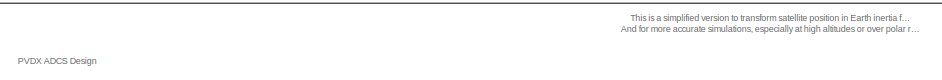
[diagram: root canvas - part 1/5, top center region]
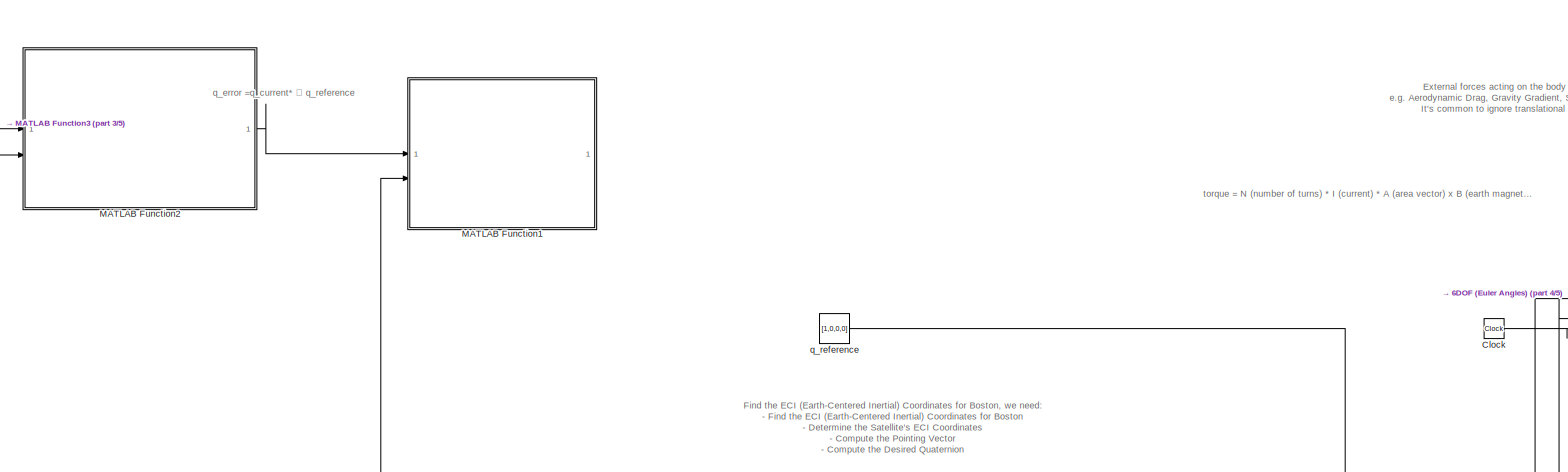
[diagram: root canvas - part 2/5, top left region]
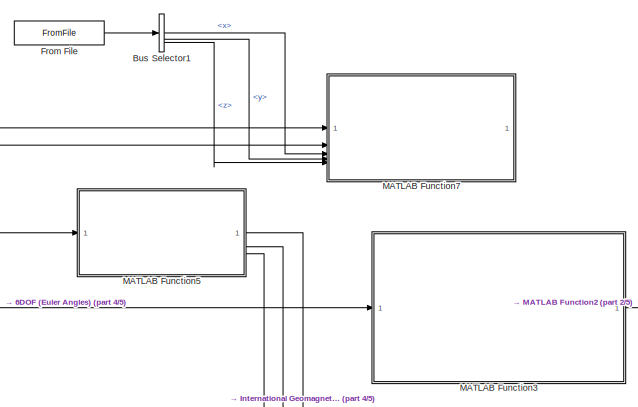
[diagram: root canvas - part 3/5, top right region]
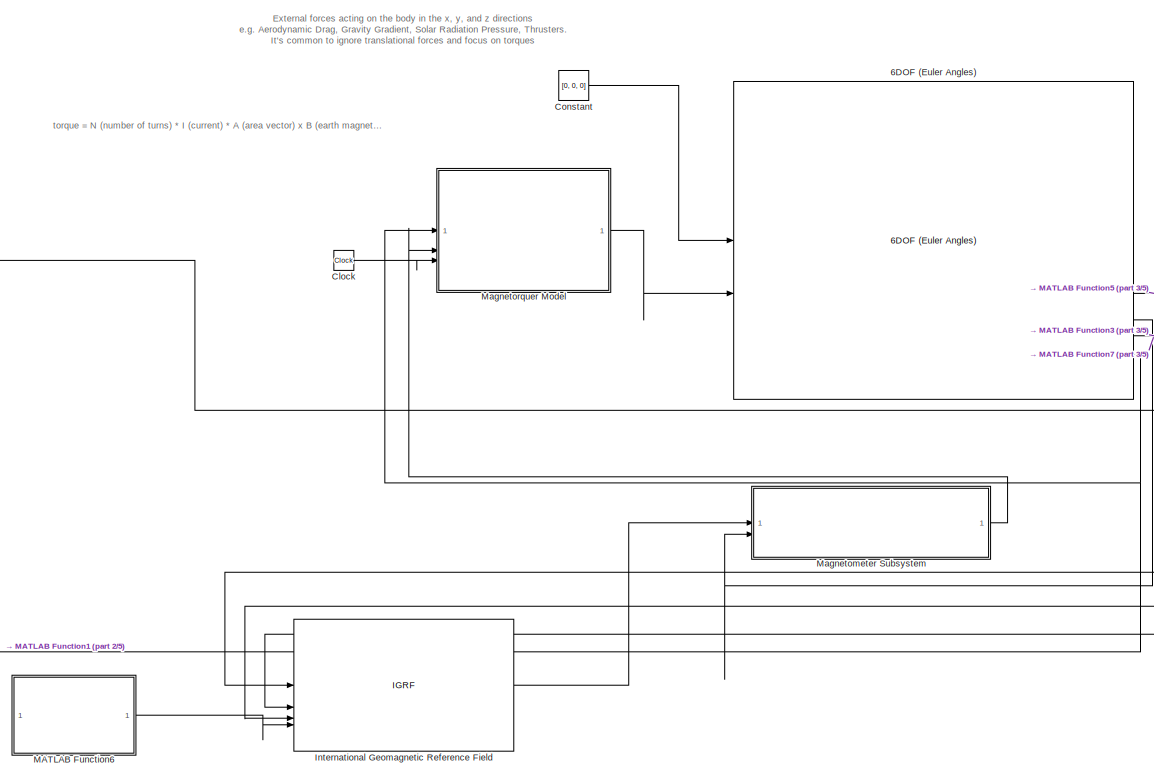
[diagram: root canvas - part 4/5, central region]
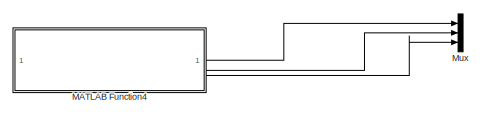
[diagram: root canvas - part 5/5, bottom center region]
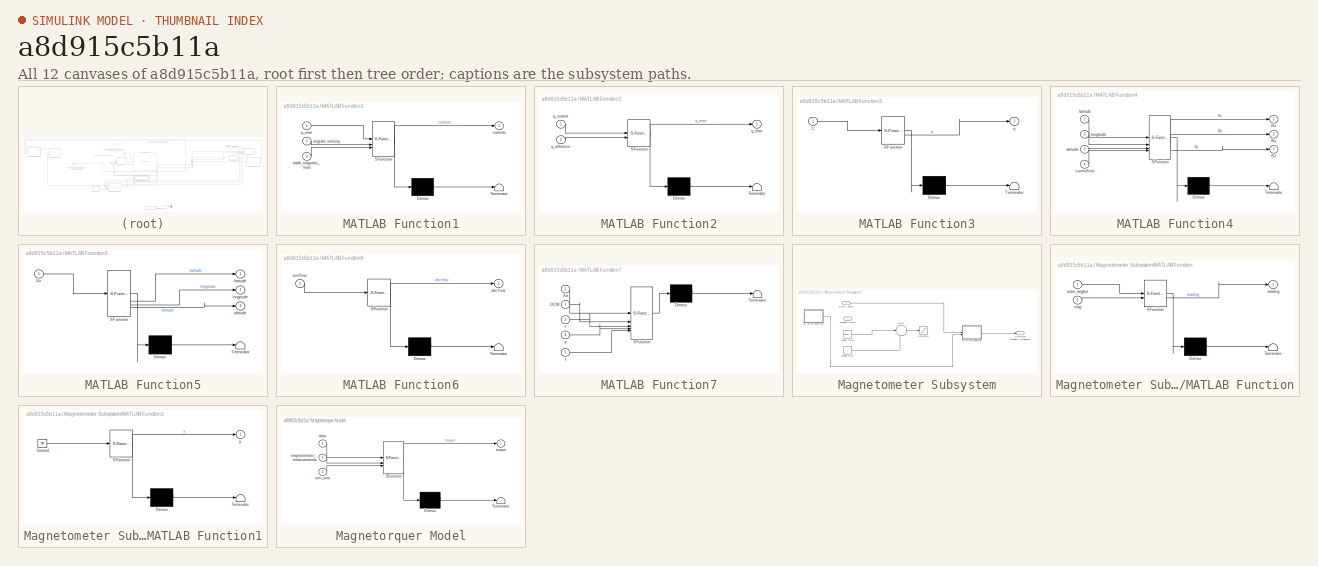
[diagram: thumbnail index - all 12 canvases of the model, root first then tree order]
MODEL slx_a8d915c5b11a
KIND model
CONFIG AbsTol = auto
CONFIG EnableMultiTasking = off
CONFIG FixedStep = auto
CONFIG InitFcn = % Define the parameters\ncore_radius = 0.005;\ncore_length = 0.045;\nlayers = 6;\ntemp = 20;\nside_length = 0.045;\nair_length = 0.025;\nair_layers = 5;\n \ncoreMagX = CoreMagnetorquer(core_radius, core_length, layers, temp);\ncoreMagY = CoreMagnetorquer(core_radius, core_length, layers, temp);  \nairMagZ = AirMagnetorquer(side_length, air_length, air_layers, temp);\n\n
CONFIG MaxStep = auto
CONFIG MinStep = auto
CONFIG RelTol = 1e-3
CONFIG SampleTimeConstraint = Unconstrained
CONFIG SolverName = ode45
CONFIG StartTime = 0.0
CONFIG StopTime = 100000
BLOCK [Reference] 6DOF (Euler Angles)  REF=shared6dof/6DOF (Euler Angles)
  LibrarySourceBlock = aerolib6dof2/6DOF (Euler Angles)
  SourceBlock = shared6dof/6DOF (Euler Angles)
  SourceType = 6DOF EoM (Body Axis)
BLOCK [BusSelector] Bus Selector1
  Commented = on
  OutputSignals = x,y,z
BLOCK [Clock] Clock
BLOCK [Constant] Constant
  Commented = on
  Value = [0, 0, 0]
BLOCK [FromFile] From File
  Commented = on
  FileName = <userpath>/Documents/Brown/BSE/ADCS/ADCS_Visual_MATLAB/earth_sphere_v73.mat
  OutDataTypeStr = Bus: SphereBus
  SampleTime = 0
BLOCK [IGRF] International Geomagnetic Reference Field
  AttributesFormatString = %<generation>
  Commented = on
  day = 1
  month = January
  year = 2020
BLOCK [SubSystem] MATLAB Function1
  Commented = on
  ErrorFcn = Stateflow.Translate.translate
  PermitHierarchicalResolution = ExplicitOnly
  SFBlockType = MATLAB Function
  TreatAsAtomicUnit = on
BLOCK [Demux] MATLAB Function1/ Demux 
  Outputs = 1
BLOCK [S-Function] MATLAB Function1/ SFunction 
  EnableBusSupport = on
  FunctionName = sf_sfun
  PortCounts = [3 2]
  SFcnIsStateOwnerBlock = off
  SFunctionDeploymentMode = off
  Tag = Stateflow S-Function 1
BLOCK [Terminator] MATLAB Function1/ Terminator 
BLOCK [Inport] MATLAB Function1/angular_velocity
  Port = 2
BLOCK [Outport] MATLAB Function1/currents
BLOCK [Inport] MATLAB Function1/earth_magnetic_field
  Port = 3
BLOCK [Inport] MATLAB Function1/q_error
BLOCK [SubSystem] MATLAB Function2
  Commented = on
  ErrorFcn = Stateflow.Translate.translate
  PermitHierarchicalResolution = ExplicitOnly
  SFBlockType = MATLAB Function
  TreatAsAtomicUnit = on
BLOCK [Demux] MATLAB Function2/ Demux 
  Outputs = 1
BLOCK [S-Function] MATLAB Function2/ SFunction 
  EnableBusSupport = on
  FunctionName = sf_sfun
  PortCounts = [2 2]
  SFcnIsStateOwnerBlock = off
  SFunctionDeploymentMode = off
  Tag = Stateflow S-Function 3
BLOCK [Terminator] MATLAB Function2/ Terminator 
BLOCK [Inport] MATLAB Function2/q_current
BLOCK [Outport] MATLAB Function2/q_error
BLOCK [Inport] MATLAB Function2/q_reference
  Port = 2
BLOCK [SubSystem] MATLAB Function3
  Commented = on
  ErrorFcn = Stateflow.Translate.translate
  PermitHierarchicalResolution = ExplicitOnly
  SFBlockType = MATLAB Function
  TreatAsAtomicUnit = on
BLOCK [Demux] MATLAB Function3/ Demux 
  Outputs = 1
BLOCK [S-Function] MATLAB Function3/ SFunction 
  EnableBusSupport = on
  FunctionName = sf_sfun
  PortCounts = [1 2]
  SFcnIsStateOwnerBlock = off
  SFunctionDeploymentMode = off
  Tag = Stateflow S-Function 4
BLOCK [Terminator] MATLAB Function3/ Terminator 
BLOCK [Inport] MATLAB Function3/C
BLOCK [Outport] MATLAB Function3/q
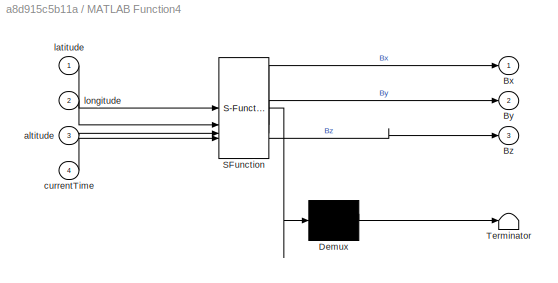
BLOCK [SubSystem] MATLAB Function4
  Commented = on
  ErrorFcn = Stateflow.Translate.translate
  PermitHierarchicalResolution = ExplicitOnly
  SFBlockType = MATLAB Function
  TreatAsAtomicUnit = on
BLOCK [Demux] MATLAB Function4/ Demux 
  Outputs = 1
BLOCK [S-Function] MATLAB Function4/ SFunction 
  EnableBusSupport = on
  FunctionName = sf_sfun
  PortCounts = [4 4]
  SFcnIsStateOwnerBlock = off
  SFunctionDeploymentMode = off
  Tag = Stateflow S-Function 5
BLOCK [Terminator] MATLAB Function4/ Terminator 
BLOCK [Outport] MATLAB Function4/Bx
BLOCK [Outport] MATLAB Function4/By
  Port = 2
BLOCK [Outport] MATLAB Function4/Bz
  Port = 3
BLOCK [Inport] MATLAB Function4/altitude
  Port = 3
BLOCK [Inport] MATLAB Function4/currentTime
  Port = 4
BLOCK [Inport] MATLAB Function4/latitude
BLOCK [Inport] MATLAB Function4/longitude
  Port = 2
BLOCK [SubSystem] MATLAB Function5
  Commented = on
  ErrorFcn = Stateflow.Translate.translate
  PermitHierarchicalResolution = ExplicitOnly
  SFBlockType = MATLAB Function
  TreatAsAtomicUnit = on
BLOCK [Demux] MATLAB Function5/ Demux 
  Outputs = 1
BLOCK [S-Function] MATLAB Function5/ SFunction 
  EnableBusSupport = on
  FunctionName = sf_sfun
  PortCounts = [1 4]
  SFcnIsStateOwnerBlock = off
  SFunctionDeploymentMode = off
  Tag = Stateflow S-Function 6
BLOCK [Terminator] MATLAB Function5/ Terminator 
BLOCK [Inport] MATLAB Function5/Xe
BLOCK [Outport] MATLAB Function5/altitude
  Port = 3
BLOCK [Outport] MATLAB Function5/latitude
BLOCK [Outport] MATLAB Function5/longitude
  Port = 2
BLOCK [SubSystem] MATLAB Function6
  Commented = on
  ErrorFcn = Stateflow.Translate.translate
  PermitHierarchicalResolution = ExplicitOnly
  SFBlockType = MATLAB Function
  TreatAsAtomicUnit = on
BLOCK [Demux] MATLAB Function6/ Demux 
  Outputs = 1
BLOCK [S-Function] MATLAB Function6/ SFunction 
  EnableBusSupport = on
  FunctionName = sf_sfun
  PortCounts = [1 2]
  SFcnIsStateOwnerBlock = off
  SFunctionDeploymentMode = off
  Tag = Stateflow S-Function 7
BLOCK [Terminator] MATLAB Function6/ Terminator 
BLOCK [Outport] MATLAB Function6/decYear
BLOCK [Inport] MATLAB Function6/simTime
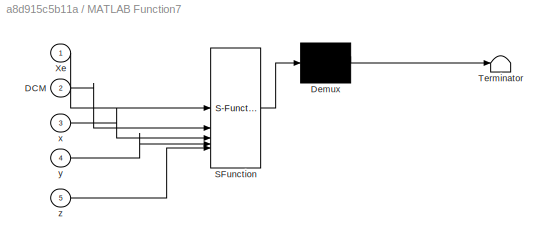
BLOCK [SubSystem] MATLAB Function7
  Commented = on
  ErrorFcn = Stateflow.Translate.translate
  PermitHierarchicalResolution = ExplicitOnly
  SFBlockType = MATLAB Function
  SystemSampleTime = 0.1
  TreatAsAtomicUnit = on
BLOCK [Demux] MATLAB Function7/ Demux 
  Outputs = 1
BLOCK [S-Function] MATLAB Function7/ SFunction 
  EnableBusSupport = on
  FunctionName = sf_sfun
  PortCounts = [5 1]
  SFcnIsStateOwnerBlock = off
  SFunctionDeploymentMode = off
  Tag = Stateflow S-Function 8
BLOCK [Terminator] MATLAB Function7/ Terminator 
BLOCK [Inport] MATLAB Function7/DCM
  Port = 2
BLOCK [Inport] MATLAB Function7/Xe
BLOCK [Inport] MATLAB Function7/x
  Port = 3
BLOCK [Inport] MATLAB Function7/y
  Port = 4
BLOCK [Inport] MATLAB Function7/z
  Port = 5
BLOCK [SubSystem] Magnetometer Subsystem
BLOCK [Inport] Magnetometer Subsystem/Euler Angles
  Port = 2
BLOCK [SubSystem] Magnetometer Subsystem/MATLAB Function
  ErrorFcn = Stateflow.Translate.translate
  PermitHierarchicalResolution = ExplicitOnly
  SFBlockType = MATLAB Function
  SystemSampleTime = 0
  TreatAsAtomicUnit = on
BLOCK [Demux] Magnetometer Subsystem/MATLAB Function/ Demux 
  Outputs = 1
BLOCK [S-Function] Magnetometer Subsystem/MATLAB Function/ SFunction 
  EnableBusSupport = on
  FunctionName = sf_sfun
  PortCounts = [2 2]
  SFcnIsStateOwnerBlock = off
  SFunctionDeploymentMode = off
  Tag = Stateflow S-Function 9
BLOCK [Terminator] Magnetometer Subsystem/MATLAB Function/ Terminator 
BLOCK [Inport] Magnetometer Subsystem/MATLAB Function/euler_angles
BLOCK [Inport] Magnetometer Subsystem/MATLAB Function/mag
  Port = 2
BLOCK [Outport] Magnetometer Subsystem/MATLAB Function/reading
BLOCK [SubSystem] Magnetometer Subsystem/MATLAB Function1
  ErrorFcn = Stateflow.Translate.translate
  PermitHierarchicalResolution = ExplicitOnly
  SFBlockType = MATLAB Function
  SystemSampleTime = 0
  TreatAsAtomicUnit = on
BLOCK [Demux] Magnetometer Subsystem/MATLAB Function1/ Demux 
  Outputs = 1
BLOCK [Ground] Magnetometer Subsystem/MATLAB Function1/ Ground 
BLOCK [S-Function] Magnetometer Subsystem/MATLAB Function1/ SFunction 
  EnableBusSupport = on
  FunctionName = sf_sfun
  PortCounts = [1 2]
  SFcnIsStateOwnerBlock = off
  SFunctionDeploymentMode = off
  Tag = Stateflow S-Function 10
BLOCK [Terminator] Magnetometer Subsystem/MATLAB Function1/ Terminator 
BLOCK [Outport] Magnetometer Subsystem/MATLAB Function1/y
BLOCK [Inport] Magnetometer Subsystem/Magnetic Field
  PortDimensions = 3
BLOCK [Constant] Magnetometer Subsystem/Model Bias
BLOCK [Reference] Magnetometer Subsystem/Model Noise  REF=simulink/Sources/Band-Limited
White Noise
  SourceBlock = simulink/Sources/Band-Limited\nWhite Noise
  SourceType = Band-Limited White Noise.
BLOCK [Saturate] Magnetometer Subsystem/Saturation
BLOCK [Outport] Magnetometer Subsystem/Simulated Magnetometer Reading
  SampleTime = 0
BLOCK [Sum] Magnetometer Subsystem/Sum1
  Inputs = |+++
BLOCK [SubSystem] Magnetorquer Model
  ErrorFcn = Stateflow.Translate.translate
  PermitHierarchicalResolution = ExplicitOnly
  SFBlockType = MATLAB Function
  SystemSampleTime = 0
  TreatAsAtomicUnit = on
BLOCK [Demux] Magnetorquer Model/ Demux 
  Outputs = 1
BLOCK [S-Function] Magnetorquer Model/ SFunction 
  EnableBusSupport = on
  FunctionName = sf_sfun
  PortCounts = [3 2]
  SFcnIsStateOwnerBlock = off
  SFunctionDeploymentMode = off
  Tag = Stateflow S-Function 2
BLOCK [Terminator] Magnetorquer Model/ Terminator 
BLOCK [Inport] Magnetorquer Model/data
BLOCK [Inport] Magnetorquer Model/magnetometer_measurements
  Port = 2
BLOCK [Inport] Magnetorquer Model/sim_time
  Port = 3
BLOCK [Outport] Magnetorquer Model/torque
BLOCK [Mux] Mux
  Commented = on
  DisplayOption = bar
  Inputs = 3
BLOCK [Constant] q_reference
  Value = [1,0,0,0]
  VectorParams1D = off
ANNOTATION (root): Find the ECI (Earth-Centered Inertial) Coordinates for Boston, we need: - Find the ECI (Earth-Centered Inertial) Coordinates for Boston - Determine the Satellite's ECI Coordinates - Compute the Pointing Vector - Compute the Desired Quaternion
ANNOTATION (root): External forces acting on the body in the x, y, and z directions e.g. Aerodynamic Drag, Gravity Gradient, Solar Radiation Pressure, Thrusters. It's common to ignore translational forces and focus on torques
ANNOTATION (root): PVDX ADCS Design
ANNOTATION (root): This is a simplified version to transform satellite position in Earth inertia frame to latitude, longitude and altitude, And for more accurate simulations, especially at high altitudes or over polar regions, we might want to use a more detailed method like Bowring's
ANNOTATION (root): q_error =q_current* ⊗ q_reference ​
ANNOTATION (root): torque = N (number of turns) * I (current) * A (area vector) x B (earth magnetic field)
NET 6DOF (Euler Angles):2 -> MATLAB Function5:1, MATLAB Function7:1
LINE 6DOF (Euler Angles):3 -> Magnetometer Subsystem:2
NET 6DOF (Euler Angles):4 -> MATLAB Function3:1, MATLAB Function7:2
NET 6DOF (Euler Angles):6 -> MATLAB Function1:2, Magnetorquer Model:1
LINE Bus Selector1:1 -> MATLAB Function7:3
LINE Bus Selector1:2 -> MATLAB Function7:4
LINE Bus Selector1:3 -> MATLAB Function7:5
LINE Clock:1 -> Magnetorquer Model:3
LINE Constant:1 -> 6DOF (Euler Angles):1
LINE From File:1 -> Bus Selector1:1
LINE International Geomagnetic Reference Field:1 -> Magnetometer Subsystem:1
LINE MATLAB Function2:1 -> MATLAB Function1:1
LINE MATLAB Function3:1 -> MATLAB Function2:1
LINE MATLAB Function4:1 -> Mux:1
LINE MATLAB Function4:2 -> Mux:2
LINE MATLAB Function4:3 -> Mux:3
LINE MATLAB Function5:1 -> International Geomagnetic Reference Field:2
LINE MATLAB Function5:2 -> International Geomagnetic Reference Field:3
LINE MATLAB Function5:3 -> International Geomagnetic Reference Field:1
LINE MATLAB Function6:1 -> International Geomagnetic Reference Field:4
LINE Magnetometer Subsystem/Euler Angles:1 -> Magnetometer Subsystem/MATLAB Function:1
LINE Magnetometer Subsystem/MATLAB Function1:1 -> Magnetometer Subsystem/MATLAB Function:2
LINE Magnetometer Subsystem/MATLAB Function:1 -> Magnetometer Subsystem/Simulated Magnetometer Reading:1
LINE Magnetometer Subsystem/Model Bias:1 -> Magnetometer Subsystem/Sum1:3
LINE Magnetometer Subsystem/Model Noise:1 -> Magnetometer Subsystem/Sum1:2
LINE Magnetometer Subsystem/Sum1:1 -> Magnetometer Subsystem/Saturation:1
LINE Magnetometer Subsystem:1 -> Magnetorquer Model:2
LINE Magnetorquer Model:1 -> 6DOF (Euler Angles):2
LINE q_reference:1 -> MATLAB Function2:2
note: NET lines group one-source signal fan-out (src -> all destinations, sorted); 1:1 wires keep LINE
CHART MATLAB Function1 states=1 transitions=1
  STATE_LABEL 'eML_blk_kernel()'
  STATE_LABEL "SCRIPT:\nfunction currents = controlAlgorithm(q_error, angular_velocity, earth_magnetic_field)\n    % Ensure inputs are column vectors\n    q_error_vec = q_error(2:4).';  % Extract the vector part of the quaternion\n    angular_velocity = angular_velocity(:);\n    earth_magnetic_field = earth_magnetic_field(:);\n\n    % Proportional and Derivative control gains\n    Kp = diag([1, 1, 1]);  % Proportional g...<+1029ch>"
CHART Magnetorquer Model states=1 transitions=1
  STATE_LABEL 'eML_blk_kernel()'
  STATE_LABEL 'SCRIPT:\nfunction torque = magnetorquerModel(data, magnetometer_measurements, sim_time)\n    persistent coreMagX coreMagY airMagZ prev_measurement prev_time\n    data\n    % Define the parameters\n    core_radius = 0.005;\n    core_length = 0.045;\n    layers = 6;\n    temp = 20;\n    side_length = 0.045;\n    air_length = 0.025;\n    air_layers = 5;\n\n    if isempty(coreMagX) || isempty(coreMagY) || isempty(...<+1356ch>'
CHART MATLAB Function2 states=1 transitions=1
  STATE_LABEL 'eML_blk_kernel()'
  STATE_LABEL 'SCRIPT:\nfunction q_error = computeAttitudeError(q_current, q_reference)\n    % Compute the conjugate of the current quaternion\n    q_current_star = [q_current(1), -q_current(2:4)];\n    \n    % Multiply the conjugate of the current quaternion with the reference quaternion\n    q_error = quatmultiply(q_current_star, q_reference);\nend\n'
CHART MATLAB Function3 states=1 transitions=1
  STATE_LABEL 'eML_blk_kernel()'
  STATE_LABEL 'SCRIPT:\nfunction q = DCMtoQuaternion(C)\n    % Extract individual elements from the DCM\n    C11 = C(1,1);\n    C12 = C(1,2);\n    C13 = C(1,3);\n    C21 = C(2,1);\n    C22 = C(2,2);\n    C23 = C(2,3);\n    C31 = C(3,1);\n    C32 = C(3,2);\n    C33 = C(3,3);\n\n    % Compute quaternion components\n    q0 = 0.5 * sqrt(1 + C11 + C22 + C33);\n    q1 = (1/(4*q0)) * (C32 - C23);\n    q2 = (1/(4*q0)) * (C13 - C31);\n  ...<+124ch>'
CHART MATLAB Function4 states=1 transitions=1
  STATE_LABEL 'eML_blk_kernel()'
  STATE_LABEL 'SCRIPT:\nfunction [Bx, By, Bz] = geomagneticFieldModel(latitude, longitude, altitude, currentTime)\n    % Convert latitude and longitude from degrees to radians\n    % latRad = deg2rad(latitude);\n    % lonRad = deg2rad(longitude);\n\n    [XYZ,~,~,~,~] ...\n        = igrfmagm(altitude, latitude, longitude, currentTime);\n    [Bx, By, Bz] = deal(XYZ);\n    % magFieldVector = igrf11magm(altitude, latRad, lon...<+250ch>'
CHART MATLAB Function5 states=1 transitions=1
  STATE_LABEL 'eML_blk_kernel()'
  STATE_LABEL "SCRIPT:\nfunction [latitude, longitude, altitude] = ECEFtoLLA(Xe)\n    % Earth's constants (WGS-84 ellipsoidal parameters)\n    a = 6378137;         % Equatorial radius (meters)\n    f = 1/298.257223563; % Flattening factor\n    b = (1-f)*a;         % Polar radius\n\n    % Extract the coordinates\n    x = Xe(1);\n    y = Xe(2);\n    z = Xe(3);\n\n    % Longitude\n    longitude = atan2(y, x);\n\n    % Simplified ...<+276ch>"
CHART MATLAB Function6 states=1 transitions=1
  STATE_LABEL 'eML_blk_kernel()'
  STATE_LABEL 'SCRIPT:\nfunction decYear = simTimeToDecimalYear(simTime)\n\n    % Define the epoch (starting date) - e.g., 1st Jan 2023\n    epochYear = 2023;\n    secondsInYear = 365 * 24 * 60 * 60; % Assuming non-leap year for simplicity\n    \n    % Compute elapsed years and remaining seconds since the epoch\n    elapsedYears = floor(simTime / secondsInYear);\n    remainingSeconds = mod(simTime, secondsInYear);\n\n    %...<+493ch>'
CHART MATLAB Function7 states=1 transitions=1
  STATE_LABEL 'eML_blk_kernel()'
  STATE_LABEL 'SCRIPT:\nfunction visualizeSatellite(Xe, DCM, x, y, z)\n    % Extract direction from DCM\n    dirX = DCM(:, 1);\n    dirY = DCM(:, 2);\n    dirZ = DCM(:, 3);\n\n    % Maintain history of the positions\n    persistent historyX historyY historyZ;\n    if isempty(historyX)\n        historyX = [];\n        historyY = [];\n        historyZ = [];\n    end\n\n    historyX(end+1) = Xe(1);\n    historyY(end+1) = Xe(2);\n  ...<+1636ch>'
CHART Magnetometer Subsystem/MATLAB Function states=1 transitions=1
  STATE_LABEL 'eML_blk_kernel()'
  STATE_LABEL 'SCRIPT:\nfunction reading = fcn(euler_angles, mag)\n    persistent Rz_yaw Ry_pitch Rx_roll R\n    \n    roll = euler_angles(1);\n    pitch = euler_angles(2);\n    yaw = euler_angles(3);\n\n    Rz_yaw = [cos(yaw) -sin(yaw) 0; sin(yaw) cos(yaw) 0; 0 0 1];\n    Ry_pitch = [cos(pitch) 0 sin(pitch); 0 1 0; -sin(pitch) 0 cos(pitch)];\n    Rx_roll = [1 0 0; 0 cos(roll) -sin(roll); 0 sin(roll) cos(roll)];\n    \n    ...<+102ch>'
CHART Magnetometer Subsystem/MATLAB Function1 states=1 transitions=1
  STATE_LABEL 'eML_blk_kernel()'
  STATE_LABEL 'SCRIPT:\nfunction y = fcn()\n\ny =    1.0e-05 * [2.1439; 0.1641; 3.8676];\n'
CHART  states=0 transitions=0
CHART  states=0 transitions=0
CHART  states=0 transitions=0
CHART  states=0 transitions=0
CHART  states=0 transitions=0
CHART  states=0 transitions=0
CHART  states=0 transitions=0
CHART  states=0 transitions=0
CHART  states=0 transitions=0
CHART  states=0 transitions=0
